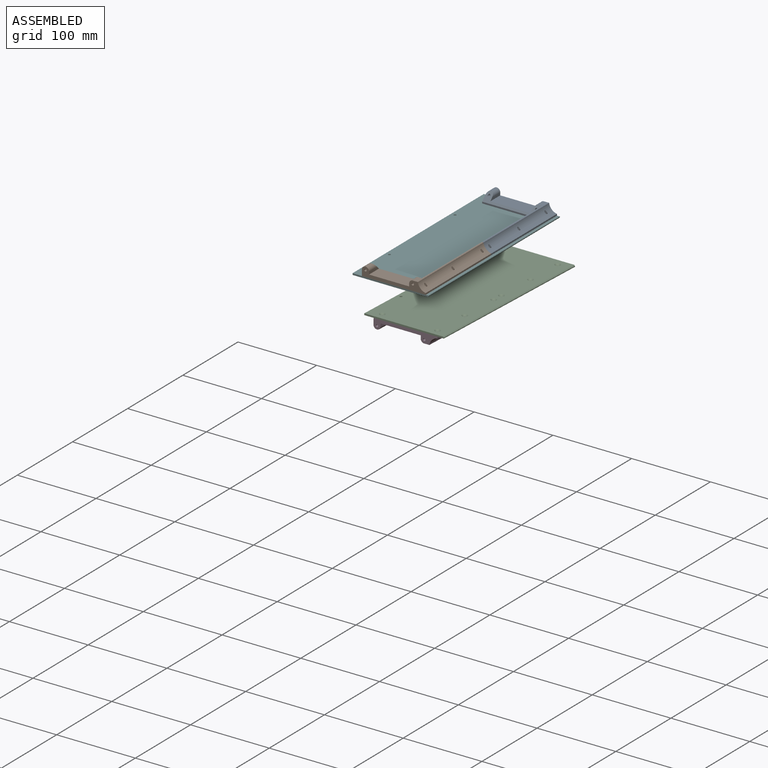
[diagram: assembled view]
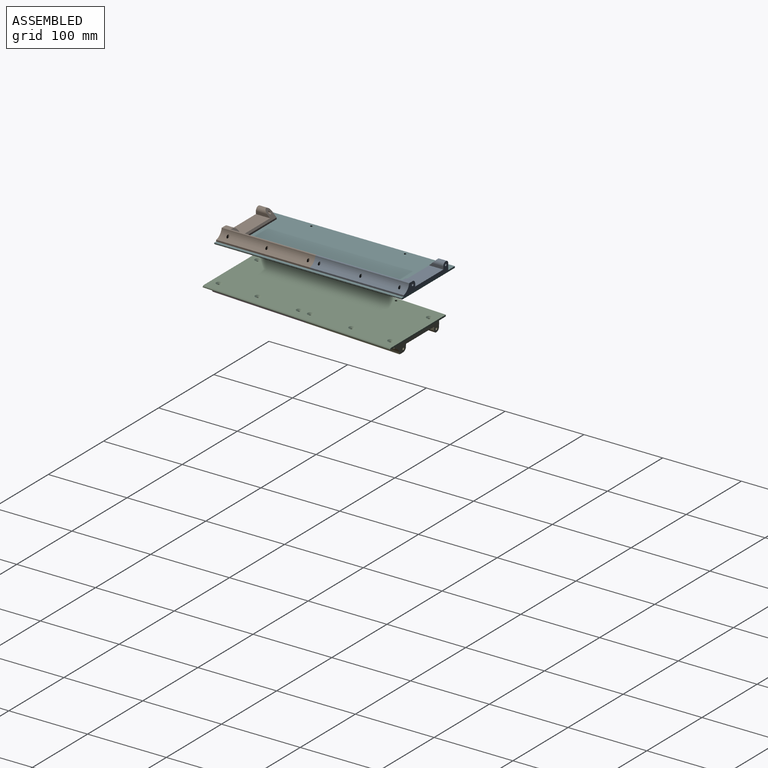
[diagram: assembled view, second angle]
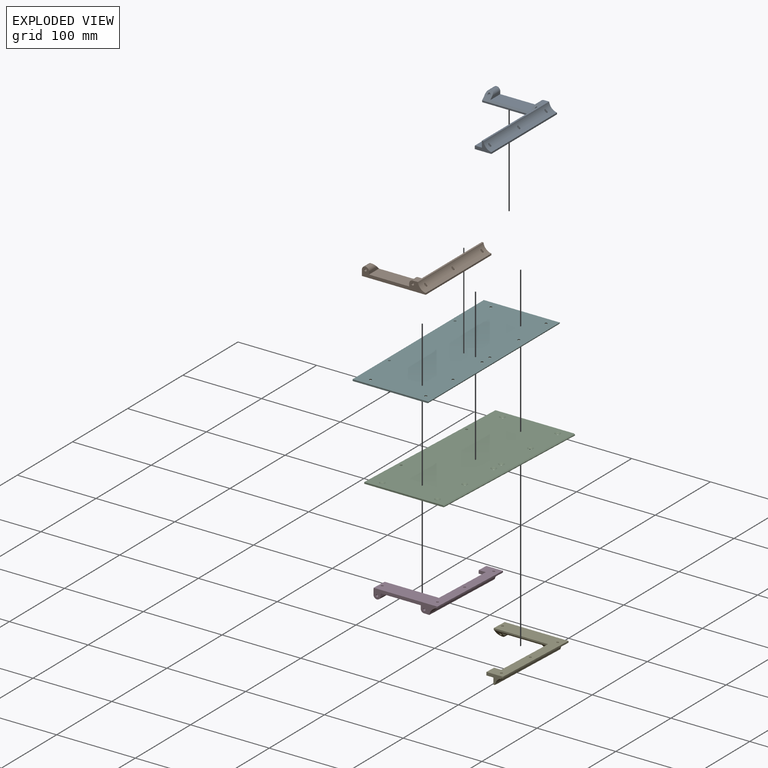
[diagram: exploded view]
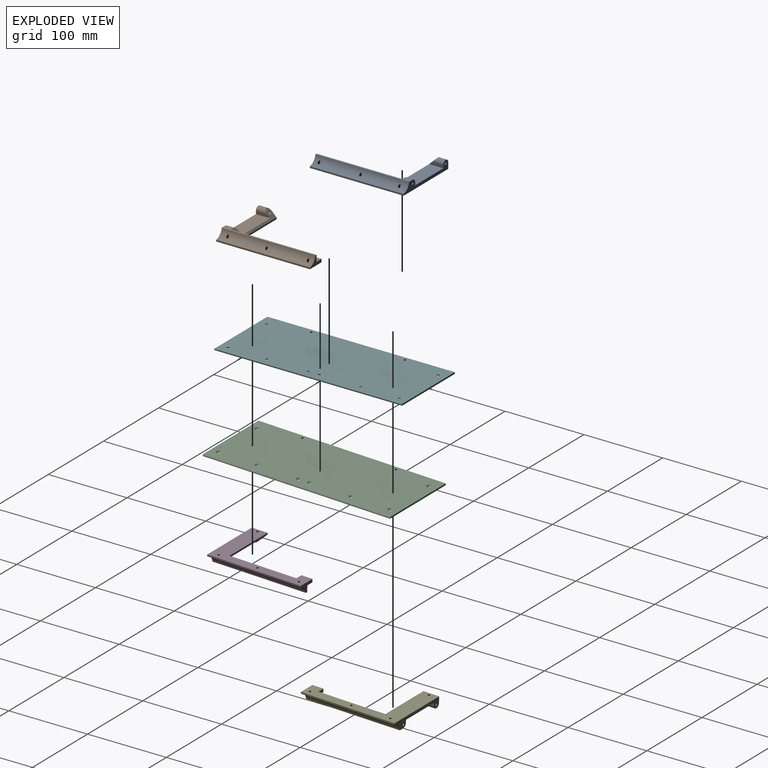
[diagram: exploded view, second angle]
ASSEMBLY  parts=6 mates=4
PART A: 25 faces, bbox 81.6x119.6x12.6 mm
  f0: cylinder r=12.08mm len=119mm, axis (0,-1,0), area 1766.1mm2, adj f4,f5,f6,f11,f22,f23,f24
  f1: cylinder r=1.5mm len=15.7mm, axis (0,-1,0), area 117.4mm2, adj f6,f16,f20
  f2: plane 109x12mm, normal (1,0,0), area 1182mm2, adj f5,f8,f9,f11,f12,f13,f16
  f3: plane 51x18mm, normal (0,0,1), area 918mm2, adj f6,f14,f15,f16
  f4: plane 119x2mm, normal (-1,0,0), area 238mm2, adj f0,f6,f11,f12
  f5: plane 119x6.5mm, normal (0,0,1), area 283mm2, adj f0,f2,f6,f11,f16,f17
  f6: plane 81x12mm, normal (0,-1,0), area 464.8mm2, adj f0,f1,f3,f4,f5,f7,f12,f14
  f7: plane 20x7.5mm, normal (1,0,0), area 134.9mm2, adj f6,f8,f12,f16,f18
  f8: plane 69x2mm, normal (0,1,0), area 138mm2, adj f2,f7,f12,f16
  f9: plane 9x4mm, normal (0,-1,0), area 36mm2, adj f2,f10,f12,f13
  f10: plane 14x4mm, normal (1,0,0), area 56mm2, adj f9,f11,f12,f13
  f11: plane 21x12mm, normal (0,1,0), area 108mm2, adj f0,f2,f4,f5,f10,f12,f13
  f12: plane 119x81mm, normal (0,0,-1), area 2905.7mm2, adj f2,f4,f6,f7,f8,f9,f10,f11
  f13: plane 14x9mm, normal (0,0,1), area 126mm2, adj f2,f9,f10,f11
  f14: plane 18x3.5mm, normal (-1,0,0), area 56.9mm2, adj f3,f6,f16,f18
  f15: plane 18x3.5mm, normal (1,0,0), area 56.9mm2, adj f3,f6,f16,f17
  f16: plane 69.63x10.63mm, normal (0,0.71,0.71), area 360.4mm2, adj f1,f2,f3,f5,f7,f8,f14,f15
  f17: cylinder r=4.5mm len=14.5mm, axis (0,-1,0), area 82.2mm2, adj f5,f6,f15,f16
  f18: cylinder r=4.5mm len=14.5mm, axis (0,-1,0), area 164.5mm2, adj f6,f7,f14,f16
  f19: cylinder r=1.5mm len=15.7mm, axis (0,-1,0), area 133.8mm2, adj f6,f16
  f20: cylinder r=1.5mm len=10mm, axis (0,0,-1), area 77.2mm2, adj f1,f12,f21
  f21: cone r=0mm half-angle=59deg, axis (0,0,-1), area 8.2mm2, adj f20
  f22: cylinder r=1.5mm len=7.58mm, axis (0,0,-1), area 54.5mm2, adj f0,f12
  f23: cylinder r=1.5mm len=7.58mm, axis (0,0,-1), area 54.5mm2, adj f0,f12
  f24: cylinder r=1.5mm len=7.58mm, axis (0,0,-1), area 54.5mm2, adj f0,f12
PART B: 25 faces, bbox 81.6x119.6x12.6 mm
  f0: cylinder r=12.08mm len=119mm, axis (0,1,0), area 1766.4mm2, adj f4,f5,f6,f11,f22,f23,f24
  f1: cylinder r=1.5mm len=15.7mm, axis (0,1,0), area 117.4mm2, adj f6,f16,f20
  f2: plane 109x12mm, normal (1,0,0), area 1182mm2, adj f5,f8,f9,f11,f12,f13,f16
  f3: plane 51x18mm, normal (0,0,1), area 918mm2, adj f6,f14,f15,f16
  f4: plane 119x2mm, normal (-1,0,0), area 238mm2, adj f0,f6,f11,f12
  f5: plane 119x6.5mm, normal (0,0,1), area 283mm2, adj f0,f2,f6,f11,f16,f17
  f6: plane 81x12mm, normal (0,1,0), area 464.8mm2, adj f0,f1,f3,f4,f5,f7,f12,f14
  f7: plane 20x7.5mm, normal (1,0,0), area 134.9mm2, adj f6,f8,f12,f16,f18
  f8: plane 69x2mm, normal (0,-1,0), area 138mm2, adj f2,f7,f12,f16
  f9: plane 9x4mm, normal (0,1,0), area 36mm2, adj f2,f10,f12,f13
  f10: plane 14x4mm, normal (1,0,0), area 56mm2, adj f9,f11,f12,f13
  f11: plane 21x12mm, normal (0,-1,0), area 108mm2, adj f0,f2,f4,f5,f10,f12,f13
  f12: plane 119x81mm, normal (0,0,-1), area 2905.7mm2, adj f2,f4,f6,f7,f8,f9,f10,f11
  f13: plane 14x9mm, normal (0,0,1), area 126mm2, adj f2,f9,f10,f11
  f14: plane 18x3.5mm, normal (-1,0,0), area 56.9mm2, adj f3,f6,f16,f18
  f15: plane 18x3.5mm, normal (1,0,0), area 56.9mm2, adj f3,f6,f16,f17
  f16: plane 69.63x10.63mm, normal (0,-0.71,0.71), area 360.4mm2, adj f1,f2,f3,f5,f7,f8,f14,f15
  f17: cylinder r=4.5mm len=14.5mm, axis (0,1,0), area 82.2mm2, adj f5,f6,f15,f16
  f18: cylinder r=4.5mm len=14.5mm, axis (0,1,0), area 164.5mm2, adj f6,f7,f14,f16
  f19: cylinder r=1.5mm len=15.7mm, axis (0,1,0), area 133.8mm2, adj f6,f16
  f20: cylinder r=1.5mm len=10mm, axis (0,0,-1), area 77.2mm2, adj f1,f12,f21
  f21: cone r=0mm half-angle=59deg, axis (0,0,-1), area 8.2mm2, adj f20
  f22: cylinder r=1.5mm len=7.58mm, axis (0,0,-1), area 54.5mm2, adj f0,f12
  f23: cylinder r=1.5mm len=7.58mm, axis (0,0,-1), area 54.5mm2, adj f0,f12
  f24: cylinder r=1.5mm len=7.58mm, axis (0,0,-1), area 54.5mm2, adj f0,f12
PART C: 17 faces, bbox 101x238x2 mm
  f0: plane 238x2mm, normal (1,0,0), area 476mm2, adj f1,f4,f5,f10
  f1: plane 101x2mm, normal (0,1,0), area 201.5mm2, adj f0,f3,f4,f5,f16
  f2: cylinder r=1.5mm len=3mm, axis (0,0,-1), area 18.8mm2, adj f4,f5
  f3: plane 238x1mm, normal (-1,0,0), area 238mm2, adj f1,f5,f10,f16
  f4: plane 238x100mm, normal (0,0,1), area 23478mm2, adj f0,f1,f2,f6,f7,f8,f9,f10
  f5: plane 238x101mm, normal (0,0,-1), area 23967.3mm2, adj f0,f1,f2,f3,f6,f7,f8,f9
  f6: cone r=1.5mm half-angle=45deg, axis (0,0,1), area 44.4mm2, adj f4,f5
  f7: cone r=1.5mm half-angle=45deg, axis (0,0,1), area 44.4mm2, adj f4,f5
  f8: cone r=1.5mm half-angle=45deg, axis (0,0,1), area 44.4mm2, adj f4,f5
  f9: cone r=1.5mm half-angle=45deg, axis (0,0,1), area 44.4mm2, adj f4,f5
  f10: plane 101x2mm, normal (0,-1,0), area 201.5mm2, adj f0,f3,f4,f5,f16
  f11: cylinder r=1.5mm len=3mm, axis (0,0,-1), area 18.8mm2, adj f4,f5
  f12: cone r=1.5mm half-angle=45deg, axis (0,0,1), area 44.4mm2, adj f4,f5
  f13: cone r=1.5mm half-angle=45deg, axis (0,0,1), area 44.4mm2, adj f4,f5
  f14: cone r=1.5mm half-angle=45deg, axis (0,0,1), area 44.4mm2, adj f4,f5
  f15: cone r=1.5mm half-angle=45deg, axis (0,0,1), area 44.4mm2, adj f4,f5
  f16: plane 238x1mm, normal (-0.71,0,0.71), area 336.6mm2, adj f1,f3,f4,f10
PART D: same geometry as A
PART E: same geometry as B
PART F: 17 faces, bbox 96.5x238x2 mm
  f0: plane 238x2mm, normal (1,0,0), area 476mm2, adj f1,f4,f5,f10
  f1: plane 96.5x2mm, normal (0,1,0), area 192.5mm2, adj f0,f3,f4,f5,f16
  f2: cylinder r=1.5mm len=3mm, axis (0,0,-1), area 18.8mm2, adj f4,f5
  f3: plane 238x1mm, normal (-1,0,0), area 238mm2, adj f1,f5,f10,f16
  f4: plane 238x95.5mm, normal (0,0,1), area 22407mm2, adj f0,f1,f2,f6,f7,f8,f9,f10
  f5: plane 238x96.5mm, normal (0,0,-1), area 22896.3mm2, adj f0,f1,f2,f3,f6,f7,f8,f9
  f6: cone r=1.5mm half-angle=45deg, axis (0,0,1), area 44.4mm2, adj f4,f5
  f7: cone r=1.5mm half-angle=45deg, axis (0,0,1), area 44.4mm2, adj f4,f5
  f8: cone r=1.5mm half-angle=45deg, axis (0,0,1), area 44.4mm2, adj f4,f5
  f9: cone r=1.5mm half-angle=45deg, axis (0,0,1), area 44.4mm2, adj f4,f5
  f10: plane 96.5x2mm, normal (0,-1,0), area 192.5mm2, adj f0,f3,f4,f5,f16
  f11: cylinder r=1.5mm len=3mm, axis (0,0,-1), area 18.8mm2, adj f4,f5
  f12: cone r=1.5mm half-angle=45deg, axis (0,0,1), area 44.4mm2, adj f4,f5
  f13: cone r=1.5mm half-angle=45deg, axis (0,0,1), area 44.4mm2, adj f4,f5
  f14: cone r=1.5mm half-angle=45deg, axis (0,0,1), area 44.4mm2, adj f4,f5
  f15: cone r=1.5mm half-angle=45deg, axis (0,0,1), area 44.4mm2, adj f4,f5
  f16: plane 238x1mm, normal (-0.71,0,0.71), area 336.6mm2, adj f1,f3,f4,f10
PLACE A rot(axis=(0,0,-1),180deg) t=(-71.71,7.72,18.5)mm
PLACE B rot(axis=(0,0,-1),180deg) t=(-71.71,7.72,18.5)mm
PLACE C rot(axis=(0,-0.02,-1),180deg) t=(-18.77,-112.12,-27.33)mm
PLACE D rot(axis=(0,-1,0.02),180deg) t=(-56.42,-112.25,-27.32)mm
PLACE E rot(axis=(0,-1,0.02),180deg) t=(-56.42,-112.25,-27.32)mm
PLACE F rot(axis=(0,-1,0),180deg) t=(-36.32,7.59,18.5)mm
MATE fastened D.f22 <-> C.f9  axis (0,0.04,1) through (16.73,-161.59,-25.57)mm
MATE fastened A.f22 <-> F.f9  axis (0,0,-1) through (1.43,57.09,18.5)mm
MATE fastened E.f22 <-> C.f15  axis (0,0.04,1) through (16.73,56.27,-33.31)mm
MATE fastened B.f22 <-> F.f15  axis (0,0,-1) through (1.43,-160.91,18.5)mm
